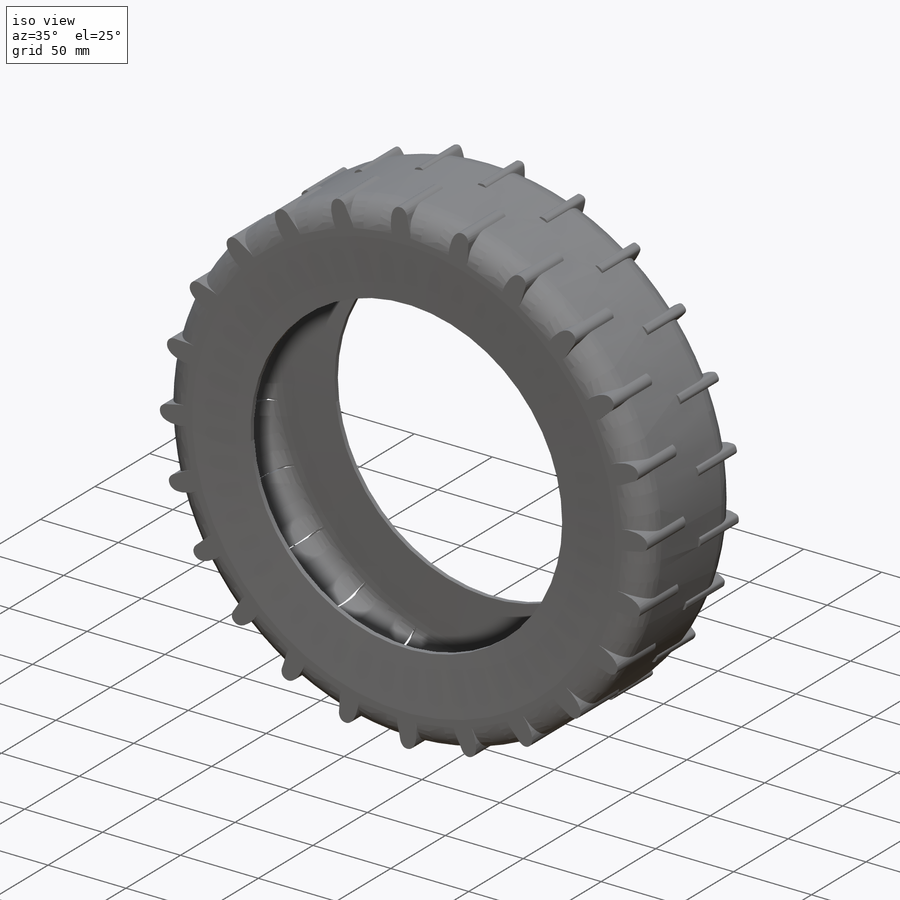
[diagram: iso view]
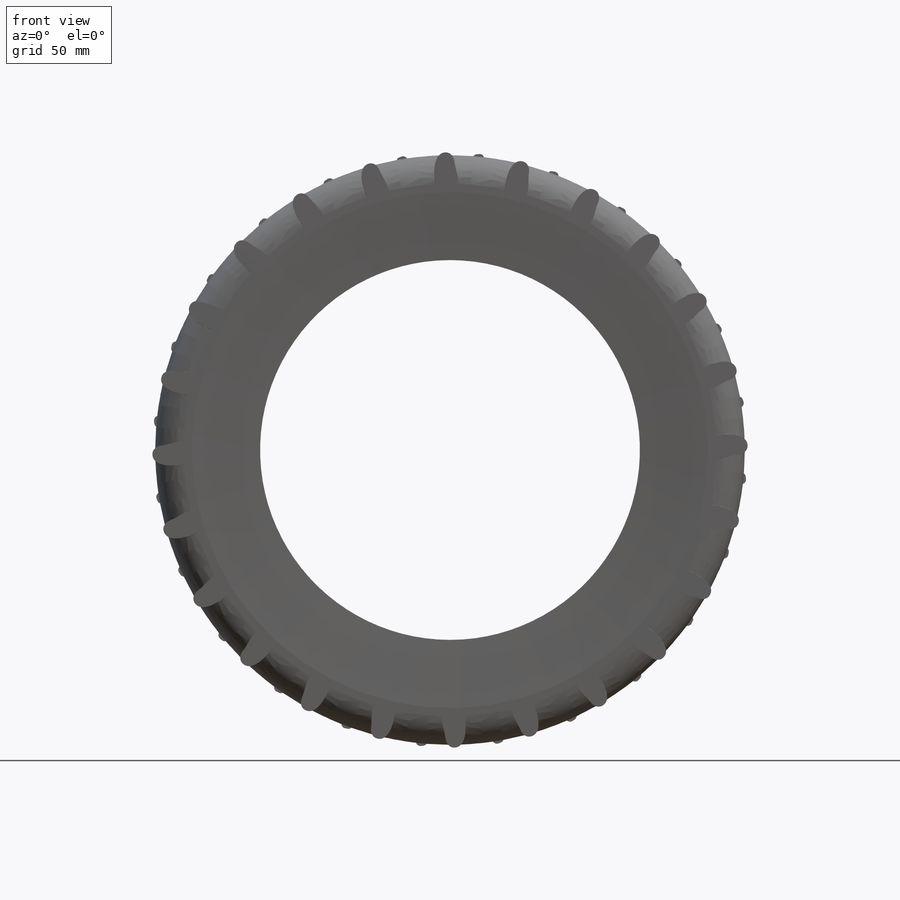
[diagram: front view]
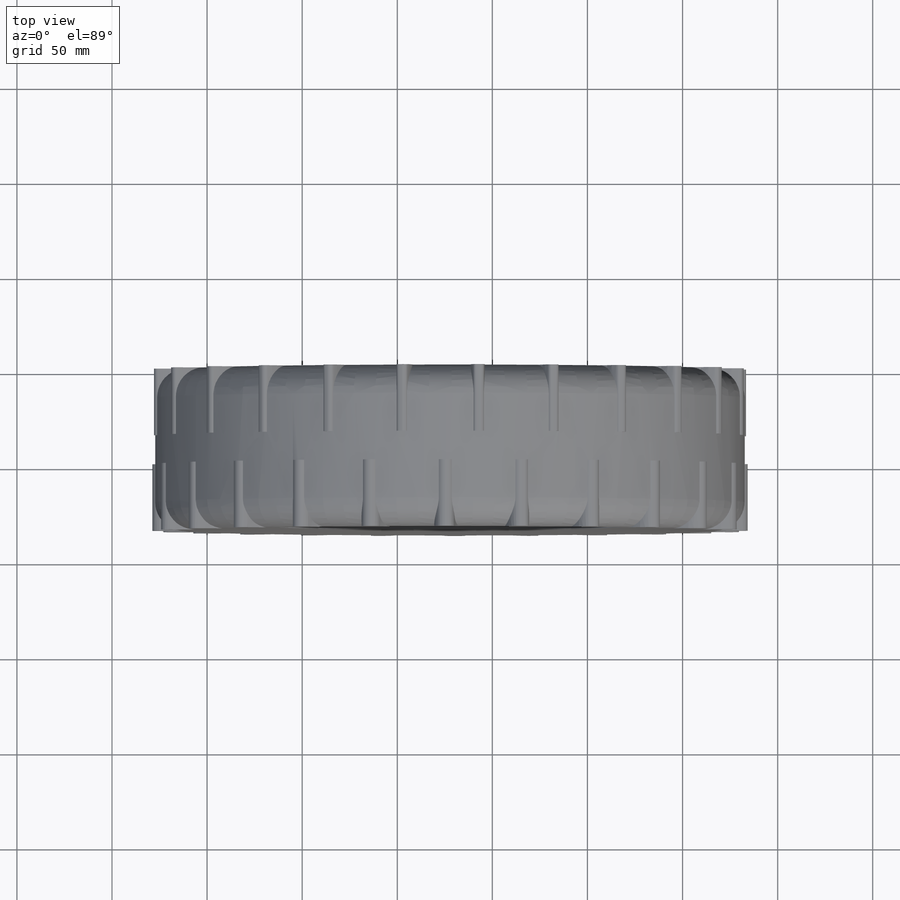
[diagram: top view]
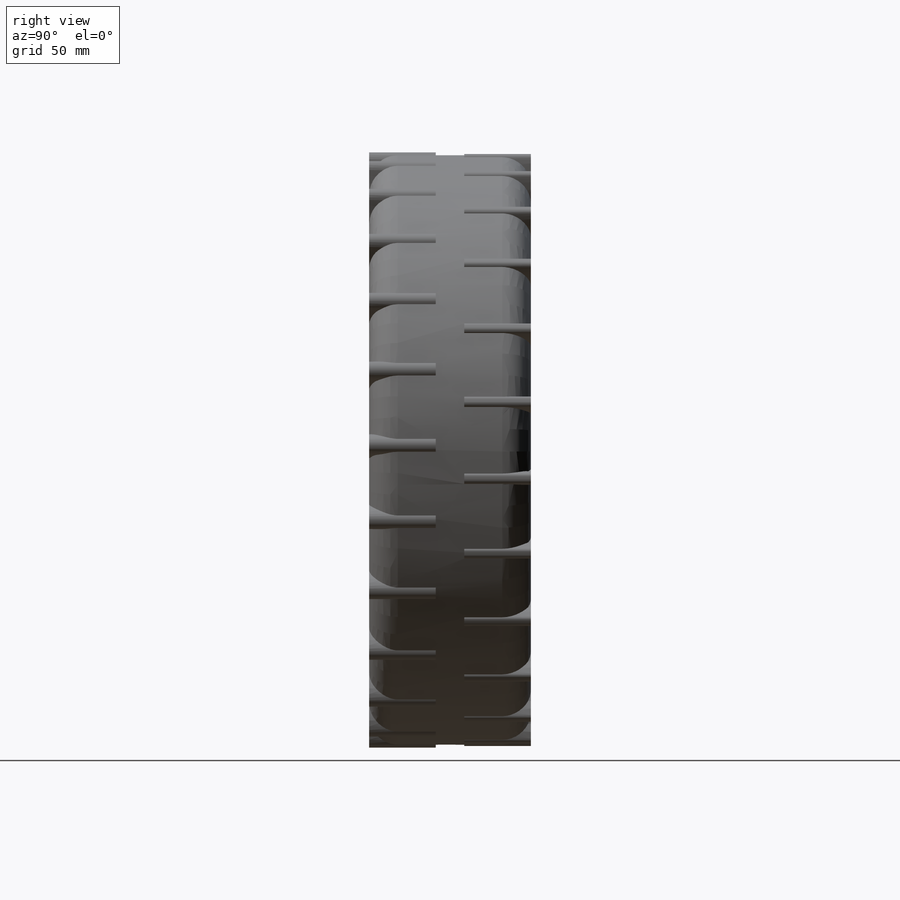
[diagram: right view]
SOLIDWORKS PART (.sldprt)
format: sldprt  version: not decoded by parser v0  size: 1,388,032 bytes
history: native  units: mm
features: sketch x6, extrude x5, pattern_circular x4, plane x3, chamfer x2, fillet x2, material x1, cut_extrude x1, shell x1 (+13 scaffold rows collapsed)
feature tree (38):
  scaffold x13  (default folders/planes/origin — collapsed)
  material  "聚亚安酯(11671)"
  plane  "前视基准面"
  plane  "上视基准面"
  plane  "右视基准面"
  sketch  "草图1"  dims[D1=350.0mm D2=200.0mm]
  extrude  "凸台-拉伸1"  Depth=85mm
  chamfer  "倒角1"  Distance=2.5mm Angle=86deg
  chamfer  "倒角2"  Distance=2.5mm Angle=86deg
  fillet  "圆角2"  Radius=20mm
  sketch  "草图3"
  extrude  "凸台-拉伸2"  Depth=35mm
  pattern_circular  "阵列(圆周)1"  Count=36 Angle=15deg
  sketch  "草图4"
  extrude  "凸台-拉伸4"  Depth=35mm
  pattern_circular  "阵列(圆周)2"  Count=36 Angle=15deg
  sketch  "草图5"
  cut_extrude  "切除-拉伸2"  Depth=156mm
  fillet  "圆角3"  Radius=15mm
  sketch  "草图6"
  extrude  "凸台-拉伸5"  Depth=35mm
  pattern_circular  "阵列(圆周)3"  Count=36 Angle=15deg
  sketch  "草图7"  dims[D1=0.0mm]
  extrude  "凸台-拉伸7"  Depth=35mm
  pattern_circular  "阵列(圆周)4"  Count=36 Angle=15deg
  shell  "抽壳4"  Thickness=3mm
decode coverage: 17 of 21 modeling features carry decoded parameters
note: suppression state not decoded; provenance and decode notes live in map.json
